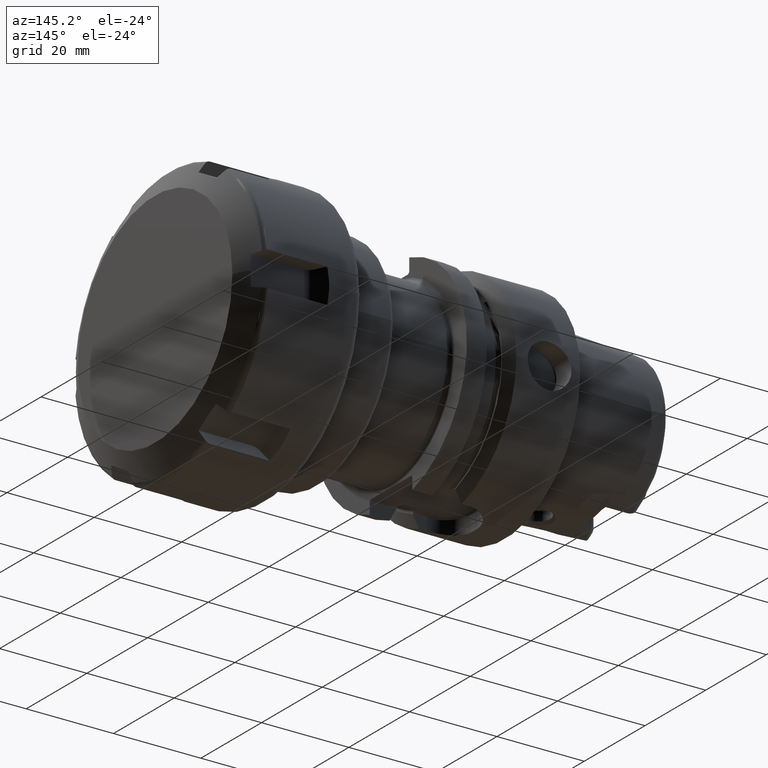
[diagram: clean part render]
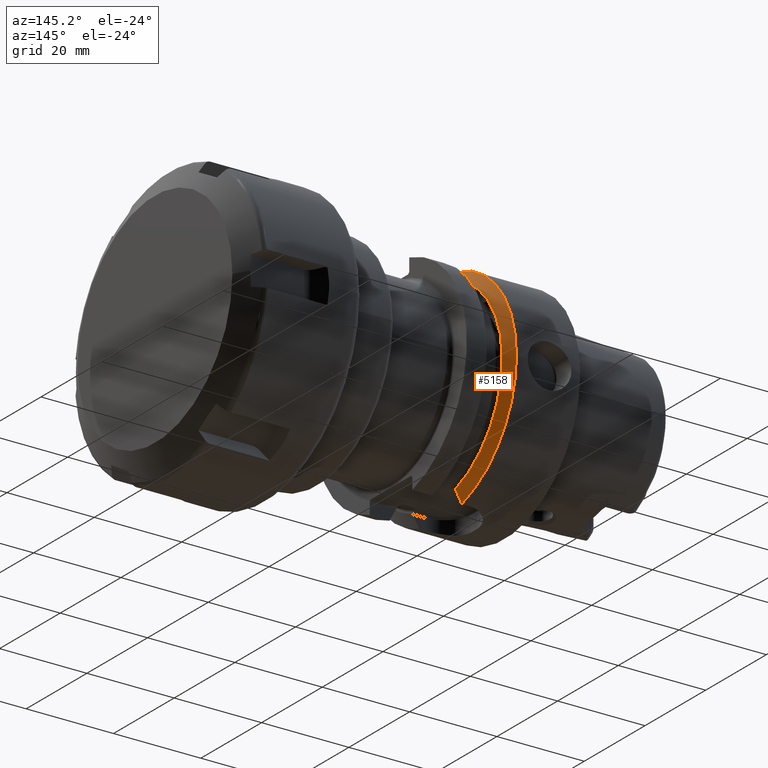
[diagram: same view with one face highlighted and labeled with its STEP entity id]
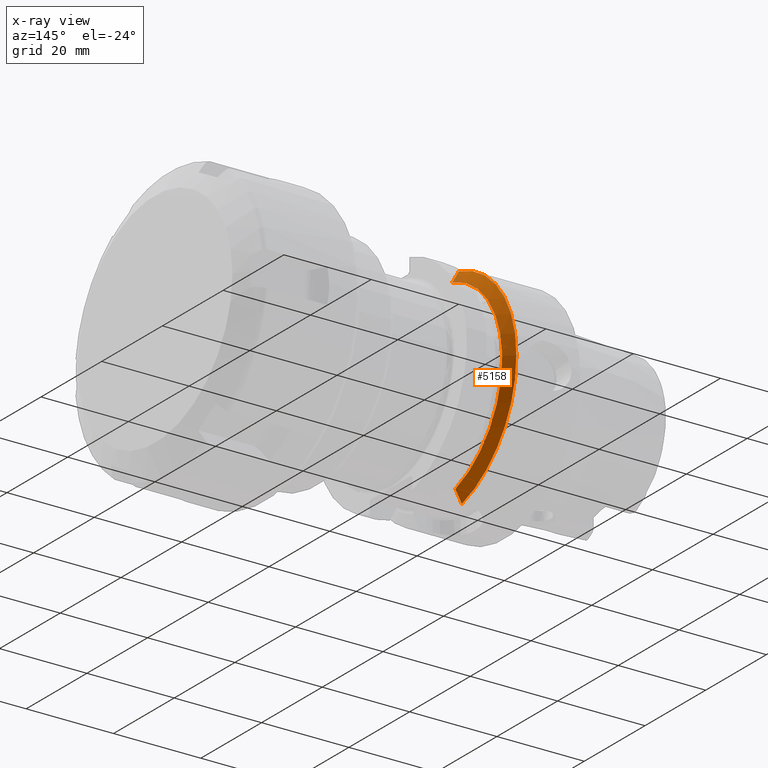
[diagram: x-ray of the same camera — body ghosted, the highlighted face saturated]
A machine part, auxiliary view. The second image highlights one B-rep face of the part: STEP entity #5158.
The next image is the same camera in x-ray: the body ghosted, the highlighted face saturated — about 2% of this face is hidden behind the body in this view.
In plain terms, the highlighted conical surface has half-angle 60 deg.
Its self-contained STEP definition (entity closure, byte-faithful):
#905=CARTESIAN_POINT('',(1.460806716851E1,0.E0,0.E0));
#906=DIRECTION('',(1.E0,0.E0,0.E0));
#907=DIRECTION('',(0.E0,1.E0,0.E0));
#908=AXIS2_PLACEMENT_3D('',#905,#906,#907);
#1139=CARTESIAN_POINT('',(1.460806716851E1,0.E0,0.E0));
#1140=DIRECTION('',(1.E0,0.E0,0.E0));
#1141=DIRECTION('',(0.E0,2.807E-1,-9.597955563556E-1));
#1142=AXIS2_PLACEMENT_3D('',#1139,#1140,#1141);
#1575=CARTESIAN_POINT('',(1.60875E1,6.0175E0,2.161557810313E1));
#1576=CARTESIAN_POINT('',(1.593105791815E1,6.0175E0,2.189684766575E1));
#1577=CARTESIAN_POINT('',(1.561287734067E1,6.0175E0,2.246811923109E1));
#1578=CARTESIAN_POINT('',(1.511991466436E1,6.0175E0,2.335091062741E1));
#1579=CARTESIAN_POINT('',(1.478046273423E1,6.0175E0,2.395734634398E1));
#1580=CARTESIAN_POINT('',(1.460806716851E1,6.0175E0,2.426498905316E1));
#1718=CARTESIAN_POINT('',(1.460806716851E1,7.0175E0,-2.399488890889E1));
#1719=CARTESIAN_POINT('',(1.478117030033E1,7.0175E0,-2.368250632149E1));
#1720=CARTESIAN_POINT('',(1.512156521149E1,7.0175E0,-2.306726652731E1));
#1721=CARTESIAN_POINT('',(1.561448175983E1,7.0175E0,-2.217337894395E1));
#1722=CARTESIAN_POINT('',(1.593174516263E1,7.0175E0,-2.159595049916E1));
#1723=CARTESIAN_POINT('',(1.60875E1,7.0175E0,-2.131192663117E1));
#1748=CARTESIAN_POINT('',(1.60875E1,0.E0,0.E0));
#1749=DIRECTION('',(1.E0,0.E0,0.E0));
#1750=DIRECTION('',(0.E0,3.127570026704E-1,-9.498331733945E-1));
#1751=AXIS2_PLACEMENT_3D('',#1748,#1749,#1750);
#3024=CARTESIAN_POINT('',(1.60875E1,6.0175E0,2.161557810313E1));
#3026=VERTEX_POINT('',#3024);
#3033=VERTEX_POINT('',#1580);
#3035=CARTESIAN_POINT('',(1.60875E1,7.0175E0,-2.131192663117E1));
#3037=VERTEX_POINT('',#3035);
#3043=VERTEX_POINT('',#1718);
#3195=CARTESIAN_POINT('',(1.460806716851E1,2.5E1,0.E0));
#3196=VERTEX_POINT('',#3195);
#5146=CARTESIAN_POINT('',(1.534778358426E1,0.E0,0.E0));
#5147=DIRECTION('',(-1.E0,0.E0,0.E0));
#5148=DIRECTION('',(0.E0,1.E0,0.E0));
#5149=AXIS2_PLACEMENT_3D('',#5146,#5147,#5148);
#5150=CONICAL_SURFACE('',#5149,2.371877358474E1,6.E1);
#5151=ORIENTED_EDGE('',*,*,#4319,.F.);
#5152=ORIENTED_EDGE('',*,*,#4451,.F.);
#5153=ORIENTED_EDGE('',*,*,#5124,.T.);
#5154=ORIENTED_EDGE('',*,*,#4609,.T.);
#5155=ORIENTED_EDGE('',*,*,#4934,.T.);
#5156=EDGE_LOOP('',(#5151,#5152,#5153,#5154,#5155));
#5157=FACE_OUTER_BOUND('',#5156,.F.);
#5158=ADVANCED_FACE('',(#5157),#5150,.T.);
#909=CIRCLE('',#908,2.5E1);
#1143=CIRCLE('',#1142,2.5E1);
#1581=B_SPLINE_CURVE_WITH_KNOTS('',3,(#1575,#1576,#1577,#1578,#1579,#1580),
.UNSPECIFIED.,.F.,.F.,(4,1,1,4),(0.E0,3.333333333333E-1,6.666666666667E-1,1.E0),
.UNSPECIFIED.);
#1724=B_SPLINE_CURVE_WITH_KNOTS('',3,(#1718,#1719,#1720,#1721,#1722,#1723),
.UNSPECIFIED.,.F.,.F.,(4,1,1,4),(0.E0,3.333333333333E-1,6.666666666667E-1,1.E0),
.UNSPECIFIED.);
#1752=CIRCLE('',#1751,2.243754716948E1);
#4319=EDGE_CURVE('',#3196,#3033,#909,.T.);
#4451=EDGE_CURVE('',#3043,#3196,#1143,.T.);
#4609=EDGE_CURVE('',#3037,#3026,#1752,.T.);
#4934=EDGE_CURVE('',#3026,#3033,#1581,.T.);
#5124=EDGE_CURVE('',#3043,#3037,#1724,.T.);